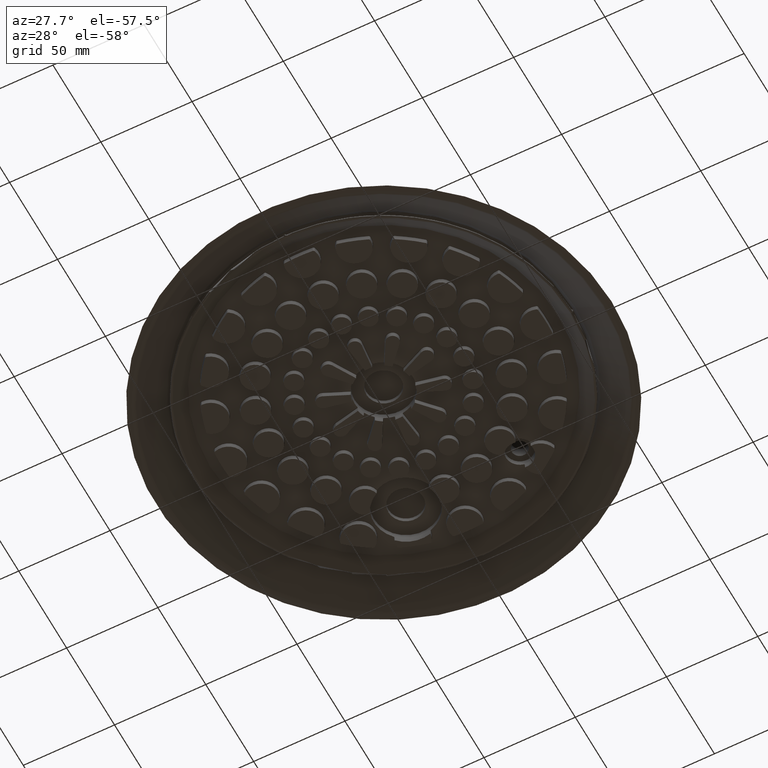
[diagram: clean part render]
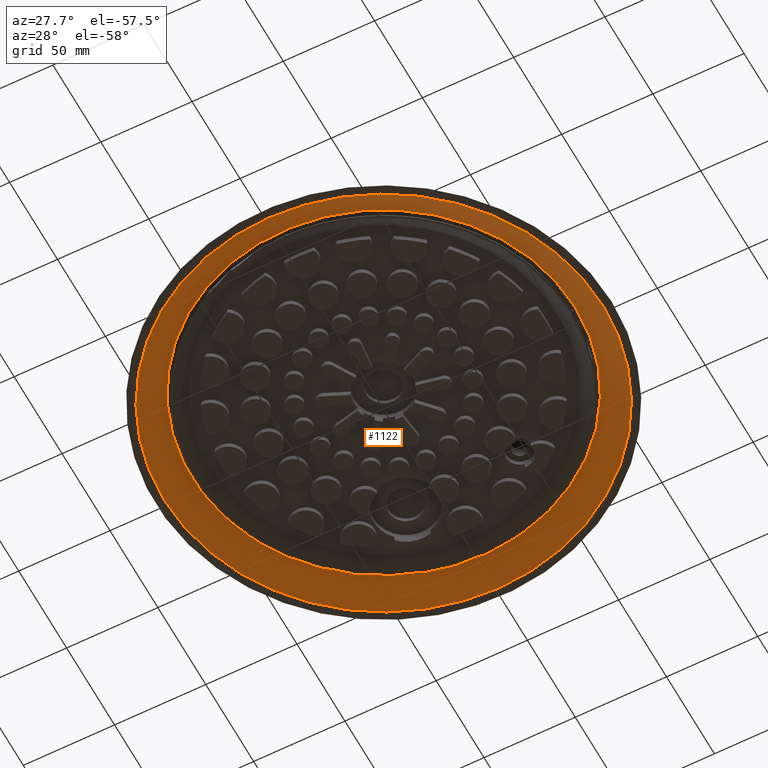
[diagram: same view with one face highlighted and labeled with its STEP entity id]
A machine part, auxiliary view. The second image highlights one B-rep face of the part: STEP entity #1122.
In plain terms, the highlighted conical surface has half-angle 58 deg.
Its self-contained STEP definition (entity closure, byte-faithful):
#1122 = ADVANCED_FACE( '', ( #2779, #2780 ), #2781, .F. );
#2779 = FACE_OUTER_BOUND( '', #5385, .T. );
#2780 = FACE_BOUND( '', #5386, .T. );
#2781 = CONICAL_SURFACE( '', #5387, 105.173345032551, 1.01229096615671 );
#5385 = EDGE_LOOP( '', ( #10287 ) );
#5386 = EDGE_LOOP( '', ( #10288 ) );
#5387 = AXIS2_PLACEMENT_3D( '', #10289, #10290, #10291 );
#10287 = ORIENTED_EDGE( '', *, *, #15521, .F. );
#10288 = ORIENTED_EDGE( '', *, *, #15522, .T. );
#10289 = CARTESIAN_POINT( '', ( 0.000000000000000, 0.000000000000000, -5.14804809615646 ) );
#10290 = DIRECTION( '', ( -0.000000000000000, 0.000000000000000, -1.00000000000000 ) );
#10291 = DIRECTION( '', ( -1.00000000000000, 0.000000000000000, 0.000000000000000 ) );
#15521 = EDGE_CURVE( '', #18105, #18105, #18106, .T. );
#15522 = EDGE_CURVE( '', #18107, #18107, #18108, .T. );
#18105 = VERTEX_POINT( '', #21948 );
#18106 = CIRCLE( '', #21949, 120.210242207300 );
#18107 = VERTEX_POINT( '', #21950 );
#18108 = CIRCLE( '', #21951, 105.173345032551 );
#21948 = CARTESIAN_POINT( '', ( 120.210242207300, 0.000000000000000, -14.5441442884693 ) );
#21949 = AXIS2_PLACEMENT_3D( '', #28088, #28089, #28090 );
#21950 = CARTESIAN_POINT( '', ( 105.173345032551, 0.000000000000000, -5.14804809615646 ) );
#21951 = AXIS2_PLACEMENT_3D( '', #28091, #28092, #28093 );
#28088 = CARTESIAN_POINT( '', ( 0.000000000000000, 0.000000000000000, -14.5441442884693 ) );
#28089 = DIRECTION( '', ( 0.000000000000000, 0.000000000000000, 1.00000000000000 ) );
#28090 = DIRECTION( '', ( 1.00000000000000, 0.000000000000000, 0.000000000000000 ) );
#28091 = CARTESIAN_POINT( '', ( 0.000000000000000, 0.000000000000000, -5.14804809615646 ) );
#28092 = DIRECTION( '', ( 0.000000000000000, 0.000000000000000, 1.00000000000000 ) );
#28093 = DIRECTION( '', ( 1.00000000000000, 0.000000000000000, 0.000000000000000 ) );